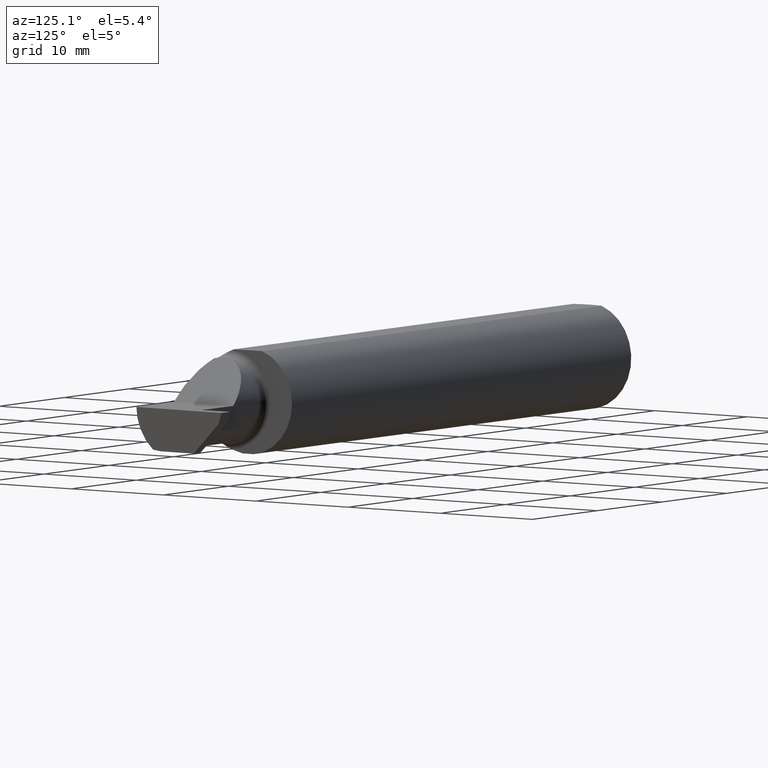
[diagram: clean part render]
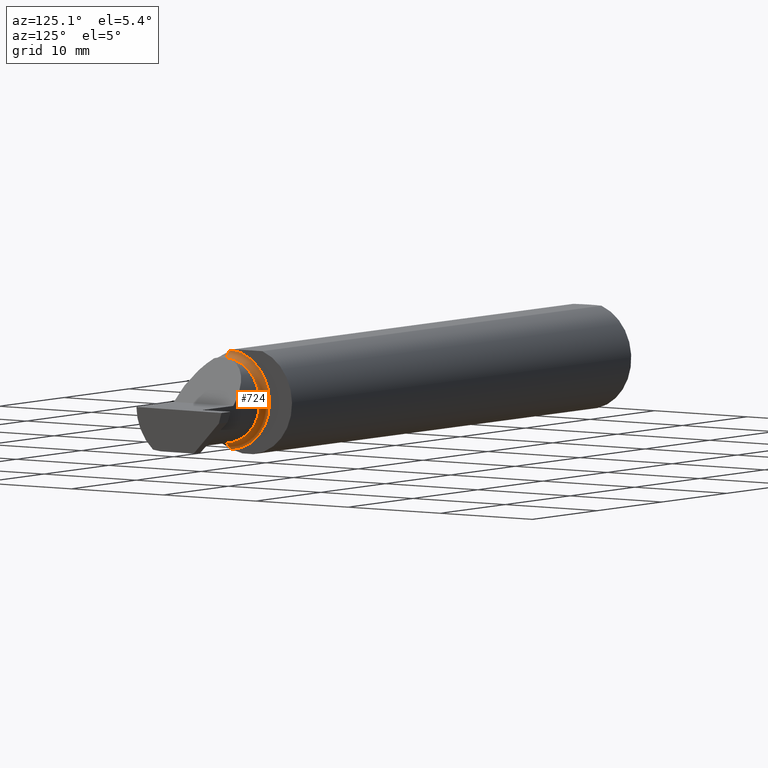
[diagram: same view with one face highlighted and labeled with its STEP entity id]
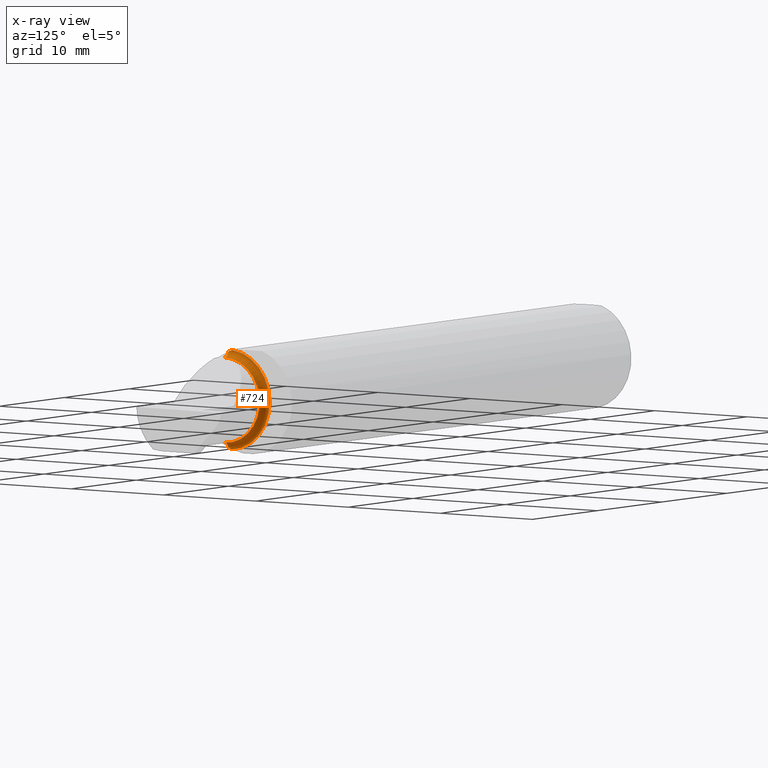
[diagram: x-ray of the same camera — body ghosted, the highlighted face saturated]
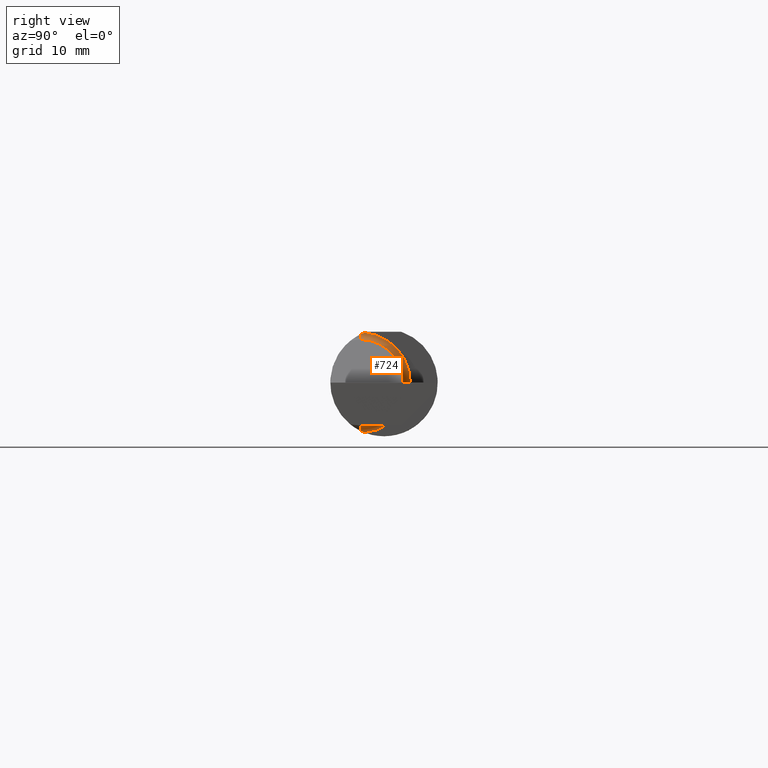
[diagram: same view with one face highlighted and labeled with its STEP entity id]
A machine part, auxiliary view. The second image highlights one B-rep face of the part: STEP entity #724.
The next image is the same camera in x-ray: the body ghosted, the highlighted face saturated — about 0% of this face is hidden behind the body in this view.
A second angle (right view) of the same face is appended — the face is thin or edge-on in the first view.
In plain terms, the highlighted toroidal blend (fillet) surface has major radius 4.445 mm and minor (blend) radius 0.635 mm.
Its self-contained STEP definition (entity closure, byte-faithful):
#17 = EDGE_CURVE ( 'NONE', #670, #356, #41, .T. ) ;
#41 = B_SPLINE_CURVE_WITH_KNOTS ( 'NONE', 3,
 ( #68, #225, #684, #146 ),
 .UNSPECIFIED., .F., .F.,
 ( 4, 4 ),
 ( 0.001278539404338873775, 0.001694873732696217669 ),
 .UNSPECIFIED. ) ;
#45 = EDGE_CURVE ( 'NONE', #578, #526, #138, .T. ) ;
#49 = DIRECTION ( 'NONE',  ( 0.000000000000000000, 0.000000000000000000, 1.000000000000000000 ) ) ;
#68 = CARTESIAN_POINT ( 'NONE',  ( 2.076062863587535556, -0.08334999999999985476, -0.1677879614275112896 ) ) ;
#82 = DIRECTION ( 'NONE',  ( 0.000000000000000000, 0.000000000000000000, 1.000000000000000000 ) ) ;
#122 = CIRCLE ( 'NONE', #896, 0.02499999999999993894 ) ;
#138 = CIRCLE ( 'NONE', #831, 0.1499999999999999944 ) ;
#144 = ORIENTED_EDGE ( 'NONE', *, *, #340, .F. ) ;
#146 = CARTESIAN_POINT ( 'NONE',  ( 2.075000000000000178, -0.06851976604679065053, -0.1743704796142198643 ) ) ;
#161 = DIRECTION ( 'NONE',  ( -1.000000000000000000, -0.000000000000000000, -0.000000000000000000 ) ) ;
#195 = CIRCLE ( 'NONE', #742, 0.02499999999999993894 ) ;
#220 = CARTESIAN_POINT ( 'NONE',  ( 2.075000000000000178, -0.06851976604679065053, -0.1743704796142198643 ) ) ;
#222 = DIRECTION ( 'NONE',  ( 0.000000000000000000, 0.000000000000000000, 1.000000000000000000 ) ) ;
#225 = CARTESIAN_POINT ( 'NONE',  ( 2.075346246588685162, -0.07856197451716391555, -0.1701664510438047062 ) ) ;
#240 = DIRECTION ( 'NONE',  ( -1.000000000000000000, -0.000000000000000000, -0.000000000000000000 ) ) ;
#258 = CARTESIAN_POINT ( 'NONE',  ( 2.074999999999999734, -0.07360907839729495528, 0.1723706084642000758 ) ) ;
#274 = ORIENTED_EDGE ( 'NONE', *, *, #803, .T. ) ;
#287 = B_SPLINE_CURVE_WITH_KNOTS ( 'NONE', 3,
 ( #654, #258, #872, #635 ),
 .UNSPECIFIED., .F., .F.,
 ( 4, 4 ),
 ( 4.423516731080786679E-05, 0.0004561457252213464405 ),
 .UNSPECIFIED. ) ;
#294 = ORIENTED_EDGE ( 'NONE', *, *, #45, .T. ) ;
#297 = DIRECTION ( 'NONE',  ( -0.000000000000000000, 1.000000000000000000, 1.224646799147353207E-16 ) ) ;
#309 = ORIENTED_EDGE ( 'NONE', *, *, #621, .F. ) ;
#340 = EDGE_CURVE ( 'NONE', #670, #526, #122, .T. ) ;
#356 = VERTEX_POINT ( 'NONE', #220 ) ;
#414 = EDGE_LOOP ( 'NONE', ( #144, #460, #309, #485, #274, #294 ) ) ;
#434 = CARTESIAN_POINT ( 'NONE',  ( 2.076062863587533780, -0.08334999999998812803, 0.1677879614275171183 ) ) ;
#437 = DIRECTION ( 'NONE',  ( 0.000000000000000000, 0.000000000000000000, 1.000000000000000000 ) ) ;
#460 = ORIENTED_EDGE ( 'NONE', *, *, #17, .T. ) ;
#463 = DIRECTION ( 'NONE',  ( 0.000000000000000000, -1.000000000000000000, 0.000000000000000000 ) ) ;
#485 = ORIENTED_EDGE ( 'NONE', *, *, #634, .T. ) ;
#501 = VERTEX_POINT ( 'NONE', #434 ) ;
#521 = VERTEX_POINT ( 'NONE', #826 ) ;
#526 = VERTEX_POINT ( 'NONE', #983 ) ;
#578 = VERTEX_POINT ( 'NONE', #894 ) ;
#620 = CARTESIAN_POINT ( 'NONE',  ( 2.100000000000000089, -0.08334999999999992415, -0.1749999999999999889 ) ) ;
#621 = EDGE_CURVE ( 'NONE', #521, #356, #647, .T. ) ;
#634 = EDGE_CURVE ( 'NONE', #521, #501, #287, .T. ) ;
#635 = CARTESIAN_POINT ( 'NONE',  ( 2.076062863587533780, -0.08334999999998812803, 0.1677879614275171183 ) ) ;
#646 = CARTESIAN_POINT ( 'NONE',  ( 2.075000000000000178, -0.08334999999999996578, 0.000000000000000000 ) ) ;
#647 = CIRCLE ( 'NONE', #811, 0.1749999999999999889 ) ;
#654 = CARTESIAN_POINT ( 'NONE',  ( 2.075000000000000178, -0.06851976604679065053, 0.1743704796142198643 ) ) ;
#670 = VERTEX_POINT ( 'NONE', #948 ) ;
#684 = CARTESIAN_POINT ( 'NONE',  ( 2.075000000000000178, -0.07359296612170559970, -0.1723769398647691520 ) ) ;
#712 = FACE_OUTER_BOUND ( 'NONE', #414, .T. ) ;
#724 = ADVANCED_FACE ( 'NONE', ( #712 ), #941, .F. ) ;
#742 = AXIS2_PLACEMENT_3D ( 'NONE', #1011, #463, #861 ) ;
#803 = EDGE_CURVE ( 'NONE', #501, #578, #195, .T. ) ;
#811 = AXIS2_PLACEMENT_3D ( 'NONE', #646, #161, #82 ) ;
#826 = CARTESIAN_POINT ( 'NONE',  ( 2.075000000000000178, -0.06851976604679065053, 0.1743704796142198643 ) ) ;
#831 = AXIS2_PLACEMENT_3D ( 'NONE', #940, #937, #222 ) ;
#861 = DIRECTION ( 'NONE',  ( 0.000000000000000000, 0.000000000000000000, -1.000000000000000000 ) ) ;
#872 = CARTESIAN_POINT ( 'NONE',  ( 2.075344683557281300, -0.07855153123406179161, 0.1701716388274757685 ) ) ;
#894 = CARTESIAN_POINT ( 'NONE',  ( 2.100000000000000089, -0.08334999999999996578, 0.1499999999999999944 ) ) ;
#896 = AXIS2_PLACEMENT_3D ( 'NONE', #620, #297, #49 ) ;
#937 = DIRECTION ( 'NONE',  ( -1.000000000000000000, -0.000000000000000000, -0.000000000000000000 ) ) ;
#940 = CARTESIAN_POINT ( 'NONE',  ( 2.100000000000000089, -0.08334999999999996578, 0.000000000000000000 ) ) ;
#941 = TOROIDAL_SURFACE ( 'NONE', #995, 0.1749999999999999889, 0.02499999999999993547 ) ;
#948 = CARTESIAN_POINT ( 'NONE',  ( 2.076062863587535556, -0.08334999999999985476, -0.1677879614275112896 ) ) ;
#954 = CARTESIAN_POINT ( 'NONE',  ( 2.100000000000000089, -0.08334999999999995191, 0.000000000000000000 ) ) ;
#983 = CARTESIAN_POINT ( 'NONE',  ( 2.100000000000000089, -0.08334999999999995191, -0.1499999999999999944 ) ) ;
#995 = AXIS2_PLACEMENT_3D ( 'NONE', #954, #240, #437 ) ;
#1011 = CARTESIAN_POINT ( 'NONE',  ( 2.100000000000000089, -0.08334999999999995191, 0.1749999999999999889 ) ) ;